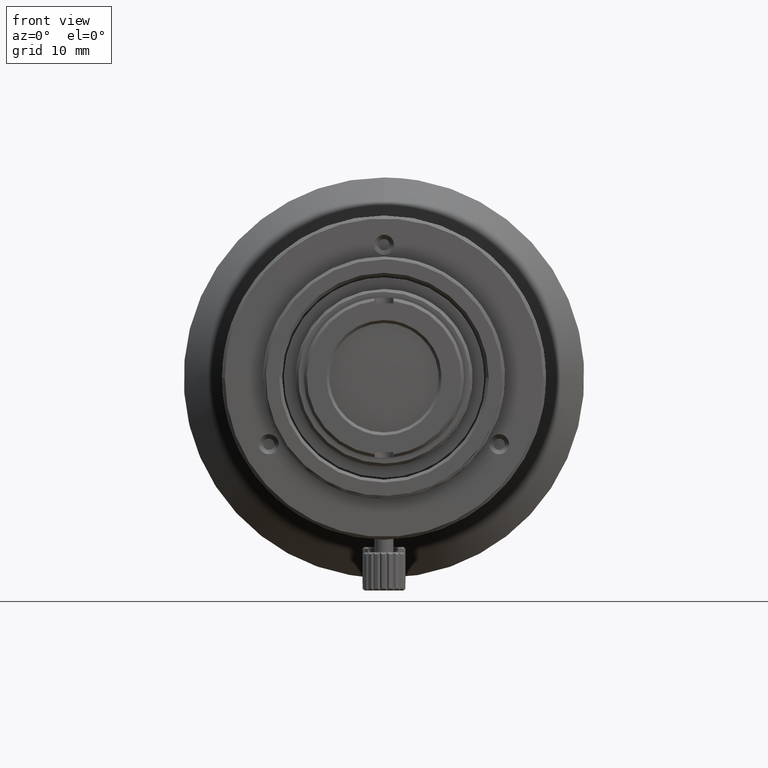
[diagram: clean part render]
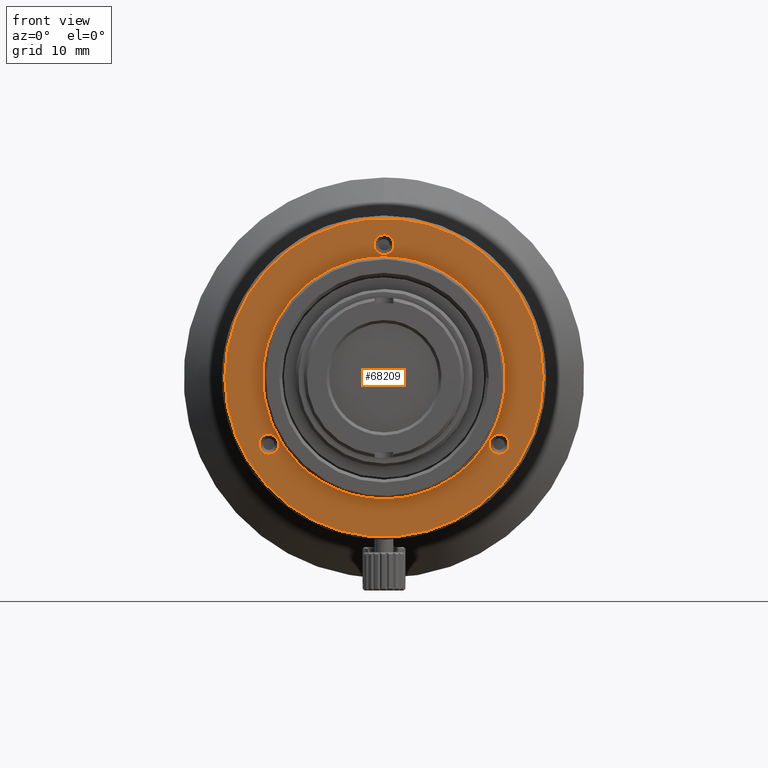
[diagram: same view with one face highlighted and labeled with its STEP entity id]
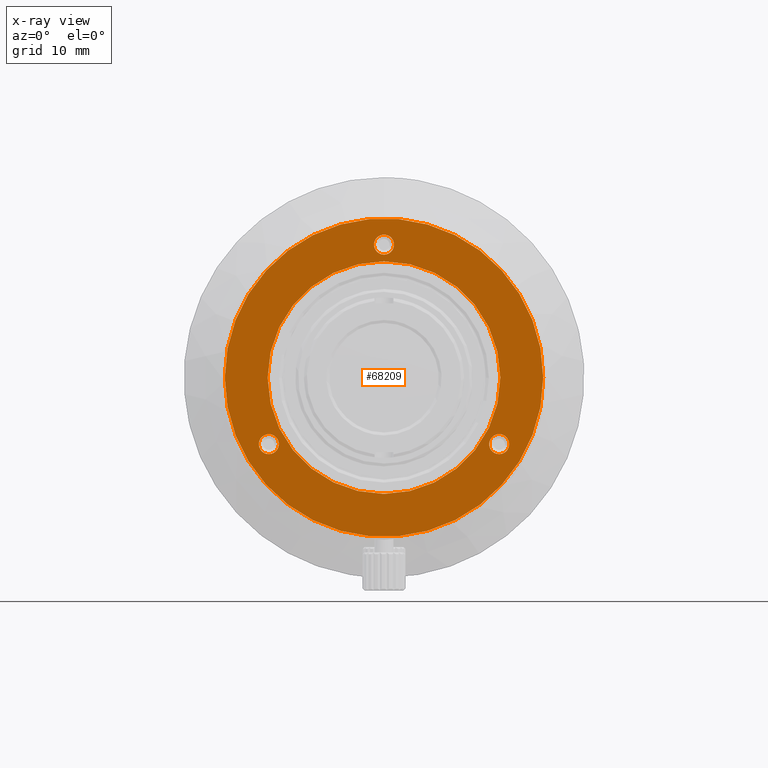
[diagram: x-ray of the same camera — body ghosted, the highlighted face saturated]
A machine part, front view. The second image highlights one B-rep face of the part: STEP entity #68209.
The next image is the same camera in x-ray: the body ghosted, the highlighted face saturated — about 0% of this face is hidden behind the body in this view.
In plain terms, the highlighted planar face has unit normal (-0, 1, 0).
Its self-contained STEP definition (entity closure, byte-faithful):
#2870 = EDGE_LOOP ( 'NONE', ( #68626, #47703 ) ) ;
#3659 = DIRECTION ( 'NONE',  ( -0.000000000000000000, 1.000000000000000000, -0.000000000000000000 ) ) ;
#4103 = FACE_OUTER_BOUND ( 'NONE', #33783, .T. ) ;
#4552 = CARTESIAN_POINT ( 'NONE',  ( -12.08105438290000144, -9.959050461417000122, -8.025000000179000281 ) ) ;
#5034 = CARTESIAN_POINT ( 'NONE',  ( -1.376676550535000050E-14, -9.959050461417000122, 0.000000000000000000 ) ) ;
#7031 = CIRCLE ( 'NONE', #71788, 16.69999765999752128 ) ;
#7967 = CARTESIAN_POINT ( 'NONE',  ( -12.08105438290000144, -9.959050461417000122, -6.975000000178999571 ) ) ;
#11282 = CIRCLE ( 'NONE', #45855, 1.049999999999999822 ) ;
#11642 = DIRECTION ( 'NONE',  ( 0.000000000000000000, -0.000000000000000000, 1.000000000000000000 ) ) ;
#12170 = DIRECTION ( 'NONE',  ( 0.000000000000000000, 0.000000000000000000, -1.000000000000000000 ) ) ;
#12557 = EDGE_LOOP ( 'NONE', ( #63351, #41549 ) ) ;
#12565 = FACE_BOUND ( 'NONE', #12557, .T. ) ;
#12651 = ORIENTED_EDGE ( 'NONE', *, *, #27875, .T. ) ;
#13087 = CARTESIAN_POINT ( 'NONE',  ( 12.08105438279000055, -9.959050461417000122, -8.024999999999998579 ) ) ;
#13172 = EDGE_CURVE ( 'NONE', #29202, #57750, #57528, .T. ) ;
#13260 = CARTESIAN_POINT ( 'NONE',  ( -12.08105438290000144, -9.959050461417000122, -6.975000000178999571 ) ) ;
#13670 = VERTEX_POINT ( 'NONE', #13087 ) ;
#13713 = DIRECTION ( 'NONE',  ( -0.000000000000000000, 1.000000000000000000, -0.000000000000000000 ) ) ;
#17231 = CARTESIAN_POINT ( 'NONE',  ( 1.038111818729999995E-10, -9.959050461417000122, 13.95000000017999930 ) ) ;
#18232 = FACE_BOUND ( 'NONE', #2870, .T. ) ;
#23390 = DIRECTION ( 'NONE',  ( -0.000000000000000000, 1.000000000000000000, -0.000000000000000000 ) ) ;
#25390 = DIRECTION ( 'NONE',  ( 0.000000000000000000, -1.000000000000000000, 0.000000000000000000 ) ) ;
#25786 = DIRECTION ( 'NONE',  ( -0.000000000000000000, 1.000000000000000000, 0.000000000000000000 ) ) ;
#26014 = EDGE_CURVE ( 'NONE', #28318, #35916, #62114, .T. ) ;
#27455 = AXIS2_PLACEMENT_3D ( 'NONE', #76764, #25390, #12170 ) ;
#27758 = EDGE_CURVE ( 'NONE', #33977, #13670, #87691, .T. ) ;
#27875 = EDGE_CURVE ( 'NONE', #35916, #28318, #66603, .T. ) ;
#27918 = AXIS2_PLACEMENT_3D ( 'NONE', #29027, #93138, #80871 ) ;
#28133 = VERTEX_POINT ( 'NONE', #81602 ) ;
#28318 = VERTEX_POINT ( 'NONE', #48112 ) ;
#28645 = ORIENTED_EDGE ( 'NONE', *, *, #70274, .T. ) ;
#29027 = CARTESIAN_POINT ( 'NONE',  ( 0.000000000000000000, -9.959050013417000358, 0.000000000000000000 ) ) ;
#29202 = VERTEX_POINT ( 'NONE', #31054 ) ;
#31054 = CARTESIAN_POINT ( 'NONE',  ( 1.494069094959770859E-15, -9.959050013417000358, 12.19999999999999929 ) ) ;
#31847 = DIRECTION ( 'NONE',  ( 0.000000000000000000, 0.000000000000000000, -1.000000000000000000 ) ) ;
#33348 = EDGE_CURVE ( 'NONE', #53623, #39675, #42468, .T. ) ;
#33656 = EDGE_LOOP ( 'NONE', ( #28645, #91169 ) ) ;
#33783 = EDGE_LOOP ( 'NONE', ( #92777, #76403 ) ) ;
#33977 = VERTEX_POINT ( 'NONE', #77227 ) ;
#35916 = VERTEX_POINT ( 'NONE', #64806 ) ;
#36465 = AXIS2_PLACEMENT_3D ( 'NONE', #17231, #23390, #31847 ) ;
#37075 = AXIS2_PLACEMENT_3D ( 'NONE', #82026, #68340, #37742 ) ;
#37670 = DIRECTION ( 'NONE',  ( 0.000000000000000000, 0.000000000000000000, -1.000000000000000000 ) ) ;
#37742 = DIRECTION ( 'NONE',  ( -1.000000000000000000, 0.000000000000000000, 0.000000000000000000 ) ) ;
#39675 = VERTEX_POINT ( 'NONE', #4552 ) ;
#39928 = FACE_BOUND ( 'NONE', #93245, .T. ) ;
#41549 = ORIENTED_EDGE ( 'NONE', *, *, #27758, .T. ) ;
#42468 = CIRCLE ( 'NONE', #56009, 1.050000000000000488 ) ;
#44623 = EDGE_CURVE ( 'NONE', #13670, #33977, #11282, .T. ) ;
#45855 = AXIS2_PLACEMENT_3D ( 'NONE', #61648, #3659, #62571 ) ;
#47040 = AXIS2_PLACEMENT_3D ( 'NONE', #65133, #85903, #58064 ) ;
#47703 = ORIENTED_EDGE ( 'NONE', *, *, #13172, .F. ) ;
#48013 = CARTESIAN_POINT ( 'NONE',  ( -12.08105438290000144, -9.959050461417000122, -5.925000000178998860 ) ) ;
#48112 = CARTESIAN_POINT ( 'NONE',  ( 1.038113104609139116E-10, -9.959050461417000122, 15.00000000017699797 ) ) ;
#53623 = VERTEX_POINT ( 'NONE', #48013 ) ;
#56009 = AXIS2_PLACEMENT_3D ( 'NONE', #7967, #74421, #37670 ) ;
#56567 = CARTESIAN_POINT ( 'NONE',  ( 0.000000000000000000, -9.959050013417000358, -12.19999999999999929 ) ) ;
#56621 = DIRECTION ( 'NONE',  ( 0.000000000000000000, 0.000000000000000000, -1.000000000000000000 ) ) ;
#57177 = VERTEX_POINT ( 'NONE', #73161 ) ;
#57528 = CIRCLE ( 'NONE', #27455, 12.19999999999999929 ) ;
#57750 = VERTEX_POINT ( 'NONE', #56567 ) ;
#58064 = DIRECTION ( 'NONE',  ( 0.000000000000000000, 0.000000000000000000, -1.000000000000000000 ) ) ;
#58998 = DIRECTION ( 'NONE',  ( 0.000000000000000000, 0.000000000000000000, -1.000000000000000000 ) ) ;
#59458 = CARTESIAN_POINT ( 'NONE',  ( 1.038111818729999995E-10, -9.959050461417000122, 13.95000000017999930 ) ) ;
#61648 = CARTESIAN_POINT ( 'NONE',  ( 12.08105438279000055, -9.959050461417000122, -6.974999999999999645 ) ) ;
#62114 = CIRCLE ( 'NONE', #36465, 1.049999999996999556 ) ;
#62571 = DIRECTION ( 'NONE',  ( 0.000000000000000000, 0.000000000000000000, -1.000000000000000000 ) ) ;
#63351 = ORIENTED_EDGE ( 'NONE', *, *, #44623, .T. ) ;
#64806 = CARTESIAN_POINT ( 'NONE',  ( 1.038111818729999995E-10, -9.959050461417000122, 12.90000000018299886 ) ) ;
#65133 = CARTESIAN_POINT ( 'NONE',  ( 12.08105438279000055, -9.959050461417000122, -6.974999999999999645 ) ) ;
#66526 = DIRECTION ( 'NONE',  ( -0.000000000000000000, 1.000000000000000000, -0.000000000000000000 ) ) ;
#66603 = CIRCLE ( 'NONE', #90794, 1.049999999996999556 ) ;
#67619 = AXIS2_PLACEMENT_3D ( 'NONE', #13260, #13713, #56621 ) ;
#68209 = ADVANCED_FACE ( 'NONE', ( #18232, #12565, #39928, #68673, #4103 ), #91766, .F. ) ;
#68340 = DIRECTION ( 'NONE',  ( -4.418572504006742472E-17, 1.000000000000000000, 2.551064024622285199E-17 ) ) ;
#68626 = ORIENTED_EDGE ( 'NONE', *, *, #79176, .F. ) ;
#68673 = FACE_BOUND ( 'NONE', #33656, .T. ) ;
#70274 = EDGE_CURVE ( 'NONE', #39675, #53623, #79674, .T. ) ;
#70773 = CARTESIAN_POINT ( 'NONE',  ( 1.325579644983985348E-17, -9.959050461414193478, -7.653237648638265331E-18 ) ) ;
#71788 = AXIS2_PLACEMENT_3D ( 'NONE', #70773, #79236, #80172 ) ;
#73161 = CARTESIAN_POINT ( 'NONE',  ( -16.69999765999752128, -9.959050461414193478, -7.653237648638265331E-18 ) ) ;
#74421 = DIRECTION ( 'NONE',  ( -0.000000000000000000, 1.000000000000000000, -0.000000000000000000 ) ) ;
#75465 = ORIENTED_EDGE ( 'NONE', *, *, #26014, .T. ) ;
#76403 = ORIENTED_EDGE ( 'NONE', *, *, #82125, .F. ) ;
#76764 = CARTESIAN_POINT ( 'NONE',  ( 0.000000000000000000, -9.959050013417000358, 0.000000000000000000 ) ) ;
#77227 = CARTESIAN_POINT ( 'NONE',  ( 12.08105438279000055, -9.959050461417000122, -5.924999999999999822 ) ) ;
#79176 = EDGE_CURVE ( 'NONE', #57750, #29202, #91196, .T. ) ;
#79236 = DIRECTION ( 'NONE',  ( -4.418572504006742472E-17, 1.000000000000000000, 2.551064024622285199E-17 ) ) ;
#79674 = CIRCLE ( 'NONE', #67619, 1.050000000000000488 ) ;
#80172 = DIRECTION ( 'NONE',  ( -1.000000000000000000, 0.000000000000000000, 0.000000000000000000 ) ) ;
#80871 = DIRECTION ( 'NONE',  ( 0.000000000000000000, 0.000000000000000000, -1.000000000000000000 ) ) ;
#81602 = CARTESIAN_POINT ( 'NONE',  ( 16.69999765999752128, -9.959050461414193478, 2.059703013931428513E-15 ) ) ;
#82026 = CARTESIAN_POINT ( 'NONE',  ( 1.325579644983985348E-17, -9.959050461414193478, -7.653237648638265331E-18 ) ) ;
#82125 = EDGE_CURVE ( 'NONE', #28133, #57177, #91258, .T. ) ;
#85250 = EDGE_CURVE ( 'NONE', #57177, #28133, #7031, .T. ) ;
#85903 = DIRECTION ( 'NONE',  ( -0.000000000000000000, 1.000000000000000000, -0.000000000000000000 ) ) ;
#87133 = AXIS2_PLACEMENT_3D ( 'NONE', #5034, #25786, #11642 ) ;
#87691 = CIRCLE ( 'NONE', #47040, 1.049999999999999822 ) ;
#90794 = AXIS2_PLACEMENT_3D ( 'NONE', #59458, #66526, #58998 ) ;
#91169 = ORIENTED_EDGE ( 'NONE', *, *, #33348, .T. ) ;
#91196 = CIRCLE ( 'NONE', #27918, 12.19999999999999929 ) ;
#91258 = CIRCLE ( 'NONE', #37075, 16.69999765999752128 ) ;
#91766 = PLANE ( 'NONE',  #87133 ) ;
#92777 = ORIENTED_EDGE ( 'NONE', *, *, #85250, .F. ) ;
#93138 = DIRECTION ( 'NONE',  ( 0.000000000000000000, -1.000000000000000000, 0.000000000000000000 ) ) ;
#93245 = EDGE_LOOP ( 'NONE', ( #12651, #75465 ) ) ;